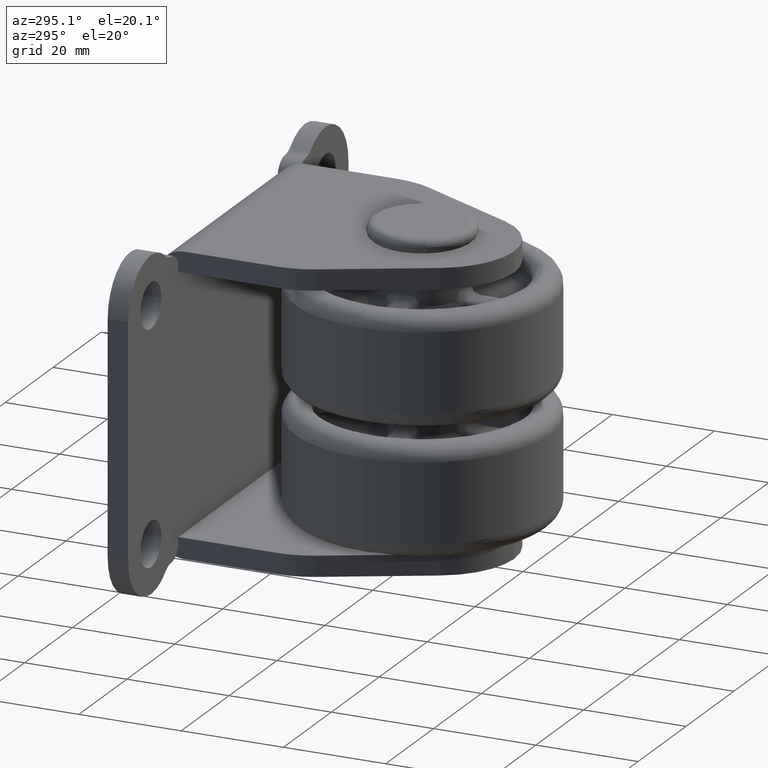
[diagram: clean part render]
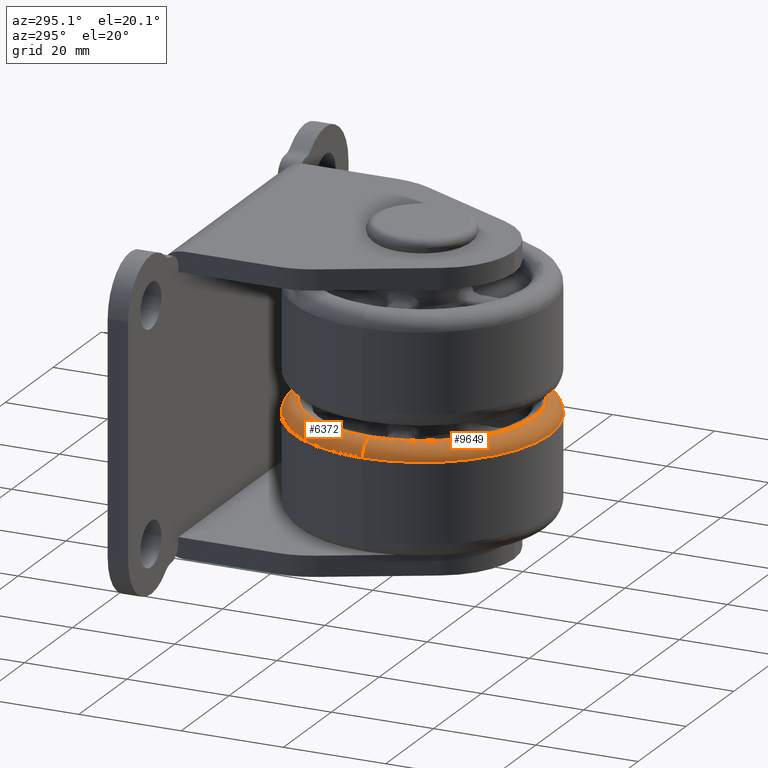
[diagram: same view with one multi-face feature highlighted, each face labeled with its STEP entity id]
A machine part, auxiliary view. The highlighted faces form ONE feature: a constant-radius fillet chain: 2 tangent blend faces with common blend radius 3 mm. The faces share edges in the B-rep.
Their STEP definitions:
[1] entity #6372 (Torus):
#408 = CIRCLE ( 'NONE', #12837, 25.00000000000001421 ) ;
#705 = CARTESIAN_POINT ( 'NONE',  ( 15.10542093666803432, -3.565439874789474661, -9.689458026421329658E-14 ) ) ;
#1509 = EDGE_LOOP ( 'NONE', ( #9656, #8672, #4022, #8703 ) ) ;
#1572 = CIRCLE ( 'NONE', #5008, 3.000000000000000444 ) ;
#2647 = CIRCLE ( 'NONE', #17661, 3.000000000000002220 ) ;
#2742 = EDGE_CURVE ( 'NONE', #12967, #18790, #2647, .T. ) ;
#4022 = ORIENTED_EDGE ( 'NONE', *, *, #2742, .T. ) ;
#4706 = AXIS2_PLACEMENT_3D ( 'NONE', #19216, #23377, #25277 ) ;
#5008 = AXIS2_PLACEMENT_3D ( 'NONE', #705, #25164, #14695 ) ;
#5841 = VERTEX_POINT ( 'NONE', #24973 ) ;
#5991 = EDGE_CURVE ( 'NONE', #22180, #5841, #1572, .T. ) ;
#6372 = ADVANCED_FACE ( 'NONE', ( #9272 ), #15846, .T. ) ;
#6804 = DIRECTION ( 'NONE',  ( -0.9999999975992007739, 6.929356839163385115E-05, 1.900777722815894331E-15 ) ) ;
#8672 = ORIENTED_EDGE ( 'NONE', *, *, #11087, .F. ) ;
#8703 = ORIENTED_EDGE ( 'NONE', *, *, #14723, .F. ) ;
#9272 = FACE_OUTER_BOUND ( 'NONE', #1509, .T. ) ;
#9656 = ORIENTED_EDGE ( 'NONE', *, *, #5991, .F. ) ;
#10323 = CARTESIAN_POINT ( 'NONE',  ( -31.89457895049438463, -3.562183077075085080, -7.558027291866200319E-15 ) ) ;
#11087 = EDGE_CURVE ( 'NONE', #12967, #22180, #408, .T. ) ;
#12837 = AXIS2_PLACEMENT_3D ( 'NONE', #23051, #25210, #6804 ) ;
#12967 = VERTEX_POINT ( 'NONE', #10323 ) ;
#14695 = DIRECTION ( 'NONE',  ( 0.9999999975992007739, -6.929356839077230345E-05, 0.000000000000000000 ) ) ;
#14723 = EDGE_CURVE ( 'NONE', #5841, #18790, #23514, .T. ) ;
#15846 = TOROIDAL_SURFACE ( 'NONE', #4706, 22.00000000000000000, 3.000000000000000000 ) ;
#17661 = AXIS2_PLACEMENT_3D ( 'NONE', #26443, #22407, #20386 ) ;
#18790 = VERTEX_POINT ( 'NONE', #23209 ) ;
#19216 = CARTESIAN_POINT ( 'NONE',  ( -6.894579010514373607, -3.563915416284874738, -5.507747036226359369E-14 ) ) ;
#20009 = DIRECTION ( 'NONE',  ( 1.892222663146249569E-15, -2.928865662844347443E-15, 1.000000000000000000 ) ) ;
#20386 = DIRECTION ( 'NONE',  ( -0.9999999975992007739, 6.929356839077226279E-05, 0.000000000000000000 ) ) ;
#22180 = VERTEX_POINT ( 'NONE', #23552 ) ;
#22306 = DIRECTION ( 'NONE',  ( -0.9999999975992007739, 6.929356839080518188E-05, 1.892425610156516974E-15 ) ) ;
#22407 = DIRECTION ( 'NONE',  ( 6.929356839080469399E-05, 0.9999999975992006629, 2.928734536952209993E-15 ) ) ;
#23051 = CARTESIAN_POINT ( 'NONE',  ( -6.894579010514373607, -3.563915416284874738, -5.507747036226359369E-14 ) ) ;
#23209 = CARTESIAN_POINT ( 'NONE',  ( -28.89457895769677975, -3.562390957780278367, 3.000000000000000000 ) ) ;
#23377 = DIRECTION ( 'NONE',  ( 1.900574775785575265E-15, -2.928866241592036568E-15, 1.000000000000000000 ) ) ;
#23514 = CIRCLE ( 'NONE', #23937, 21.99999999999999645 ) ;
#23552 = CARTESIAN_POINT ( 'NONE',  ( 18.10542092946564807, -3.565647755494634641, -1.025969134326609808E-13 ) ) ;
#23937 = AXIS2_PLACEMENT_3D ( 'NONE', #24183, #20009, #22306 ) ;
#24183 = CARTESIAN_POINT ( 'NONE',  ( -6.894579010514368278, -3.563915416284883175, 2.999999999999944933 ) ) ;
#24973 = CARTESIAN_POINT ( 'NONE',  ( 15.10542093666803432, -3.565439874789474661, 2.999999999999904965 ) ) ;
#25164 = DIRECTION ( 'NONE',  ( -6.929356839080469399E-05, -0.9999999975992006629, -2.928734536952205260E-15 ) ) ;
#25210 = DIRECTION ( 'NONE',  ( -1.900574775785575265E-15, 2.928866241592036568E-15, -1.000000000000000000 ) ) ;
#25277 = DIRECTION ( 'NONE',  ( -0.9999999975992007739, 6.929356839080122454E-05, 1.900777722815895908E-15 ) ) ;
#26443 = CARTESIAN_POINT ( 'NONE',  ( -28.89457895769678686, -3.562390957780269485, -1.326036046031392078E-14 ) ) ;
[2] entity #9649 (Torus):
#705 = CARTESIAN_POINT ( 'NONE',  ( 15.10542093666803432, -3.565439874789474661, -9.689458026421329658E-14 ) ) ;
#929 = CARTESIAN_POINT ( 'NONE',  ( -6.894579010514373607, -3.563915416284874738, -5.507747036226359369E-14 ) ) ;
#1572 = CIRCLE ( 'NONE', #5008, 3.000000000000000444 ) ;
#2647 = CIRCLE ( 'NONE', #17661, 3.000000000000002220 ) ;
#2742 = EDGE_CURVE ( 'NONE', #12967, #18790, #2647, .T. ) ;
#3000 = ORIENTED_EDGE ( 'NONE', *, *, #2742, .F. ) ;
#4633 = EDGE_LOOP ( 'NONE', ( #20026, #18502, #21048, #3000 ) ) ;
#5008 = AXIS2_PLACEMENT_3D ( 'NONE', #705, #25164, #14695 ) ;
#5841 = VERTEX_POINT ( 'NONE', #24973 ) ;
#5991 = EDGE_CURVE ( 'NONE', #22180, #5841, #1572, .T. ) ;
#7775 = CARTESIAN_POINT ( 'NONE',  ( -6.894579010514368278, -3.563915416284883175, 2.999999999999944933 ) ) ;
#9649 = ADVANCED_FACE ( 'NONE', ( #18231 ), #23323, .T. ) ;
#10162 = AXIS2_PLACEMENT_3D ( 'NONE', #929, #23221, #16795 ) ;
#10323 = CARTESIAN_POINT ( 'NONE',  ( -31.89457895049438463, -3.562183077075085080, -7.558027291866200319E-15 ) ) ;
#11760 = AXIS2_PLACEMENT_3D ( 'NONE', #26574, #16346, #24139 ) ;
#12388 = AXIS2_PLACEMENT_3D ( 'NONE', #7775, #15957, #23883 ) ;
#12967 = VERTEX_POINT ( 'NONE', #10323 ) ;
#14695 = DIRECTION ( 'NONE',  ( 0.9999999975992007739, -6.929356839077230345E-05, 0.000000000000000000 ) ) ;
#15642 = EDGE_CURVE ( 'NONE', #18790, #5841, #23947, .T. ) ;
#15957 = DIRECTION ( 'NONE',  ( 1.892222663146249569E-15, -2.928865662844347443E-15, 1.000000000000000000 ) ) ;
#16346 = DIRECTION ( 'NONE',  ( 1.900574775785575265E-15, -2.928866241592036568E-15, 1.000000000000000000 ) ) ;
#16795 = DIRECTION ( 'NONE',  ( -0.9999999975992007739, 6.929356838941340511E-05, 1.900777722815894331E-15 ) ) ;
#17661 = AXIS2_PLACEMENT_3D ( 'NONE', #26443, #22407, #20386 ) ;
#18231 = FACE_OUTER_BOUND ( 'NONE', #4633, .T. ) ;
#18502 = ORIENTED_EDGE ( 'NONE', *, *, #5991, .T. ) ;
#18790 = VERTEX_POINT ( 'NONE', #23209 ) ;
#20026 = ORIENTED_EDGE ( 'NONE', *, *, #25000, .F. ) ;
#20386 = DIRECTION ( 'NONE',  ( -0.9999999975992007739, 6.929356839077226279E-05, 0.000000000000000000 ) ) ;
#21048 = ORIENTED_EDGE ( 'NONE', *, *, #15642, .F. ) ;
#22180 = VERTEX_POINT ( 'NONE', #23552 ) ;
#22407 = DIRECTION ( 'NONE',  ( 6.929356839080469399E-05, 0.9999999975992006629, 2.928734536952209993E-15 ) ) ;
#23209 = CARTESIAN_POINT ( 'NONE',  ( -28.89457895769677975, -3.562390957780278367, 3.000000000000000000 ) ) ;
#23221 = DIRECTION ( 'NONE',  ( -1.900574775785575660E-15, 2.928866241592036568E-15, -1.000000000000000000 ) ) ;
#23323 = TOROIDAL_SURFACE ( 'NONE', #11760, 22.00000000000000000, 3.000000000000000000 ) ;
#23552 = CARTESIAN_POINT ( 'NONE',  ( 18.10542092946564807, -3.565647755494634641, -1.025969134326609808E-13 ) ) ;
#23883 = DIRECTION ( 'NONE',  ( -0.9999999975992007739, 6.929356839080518188E-05, 1.892425610156516974E-15 ) ) ;
#23947 = CIRCLE ( 'NONE', #12388, 21.99999999999999645 ) ;
#24139 = DIRECTION ( 'NONE',  ( -0.9999999975992007739, 6.929356839080122454E-05, 1.900777722815895908E-15 ) ) ;
#24973 = CARTESIAN_POINT ( 'NONE',  ( 15.10542093666803432, -3.565439874789474661, 2.999999999999904965 ) ) ;
#25000 = EDGE_CURVE ( 'NONE', #22180, #12967, #26035, .T. ) ;
#25164 = DIRECTION ( 'NONE',  ( -6.929356839080469399E-05, -0.9999999975992006629, -2.928734536952205260E-15 ) ) ;
#26035 = CIRCLE ( 'NONE', #10162, 25.00000000000001421 ) ;
#26443 = CARTESIAN_POINT ( 'NONE',  ( -28.89457895769678686, -3.562390957780269485, -1.326036046031392078E-14 ) ) ;
#26574 = CARTESIAN_POINT ( 'NONE',  ( -6.894579010514373607, -3.563915416284874738, -5.507747036226359369E-14 ) ) ;